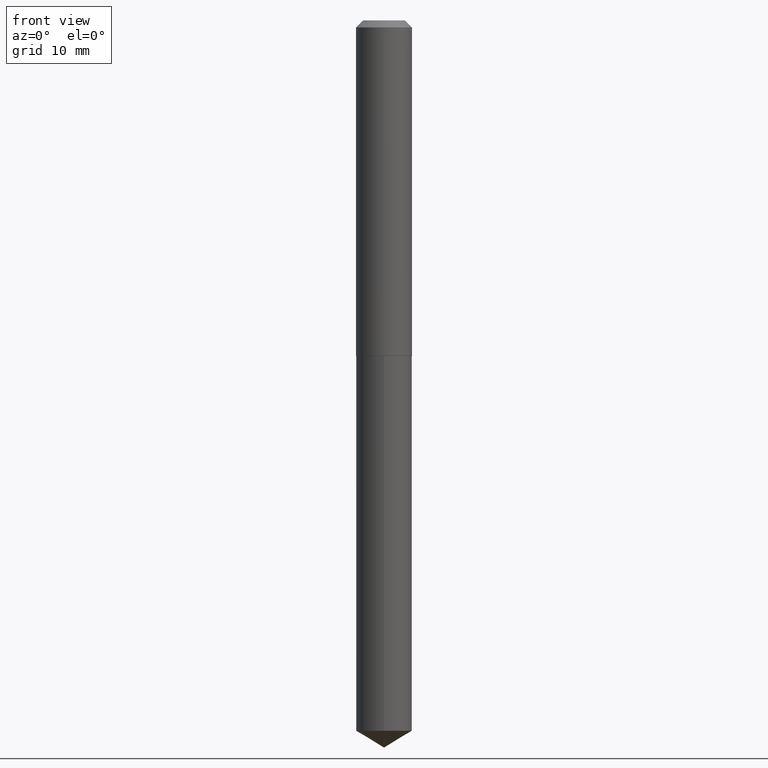
[diagram: clean part render]
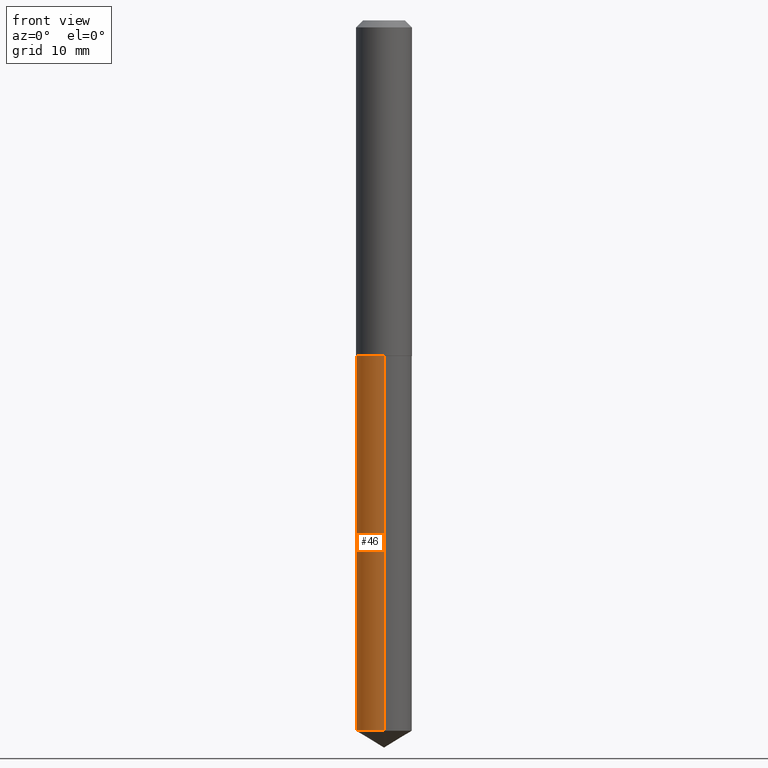
[diagram: same view with one face highlighted and labeled with its STEP entity id]
A machine part, front view. The second image highlights one B-rep face of the part: STEP entity #46.
In plain terms, the highlighted cylindrical surface (edge-blend (fillet) strip) has radius 3.175 mm, axis along (-0, 0, 1).
Its self-contained STEP definition (entity closure, byte-faithful):
#21 = CIRCLE ( 'NONE', #217, 0.1250000000000000000 ) ;
#32 = EDGE_CURVE ( 'NONE', #381, #43, #122, .T. ) ;
#33 = CARTESIAN_POINT ( 'NONE',  ( 3.668203209277704895E-29, -5.237222008264718177E-15, -1.500000000000000222 ) ) ;
#43 = VERTEX_POINT ( 'NONE', #60 ) ;
#46 = ADVANCED_FACE ( 'NONE', ( #183 ), #299, .T. ) ;
#51 = CARTESIAN_POINT ( 'NONE',  ( 8.881784197002027379E-16, 0.1249999999999889394, -3.174892422621556243 ) ) ;
#57 = AXIS2_PLACEMENT_3D ( 'NONE', #33, #223, #333 ) ;
#60 = CARTESIAN_POINT ( 'NONE',  ( 8.881784197002029351E-16, 0.1249999999999947542, -1.500000000000000666 ) ) ;
#72 = ORIENTED_EDGE ( 'NONE', *, *, #138, .T. ) ;
#108 = DIRECTION ( 'NONE',  ( -2.445363039001879850E-29, 3.491632803469463301E-15, 1.000000000000000000 ) ) ;
#121 = CARTESIAN_POINT ( 'NONE',  ( -8.728703347107465582E-16, -0.1250000000000052458, -1.499999999999999556 ) ) ;
#122 = LINE ( 'NONE', #251, #154 ) ;
#138 = EDGE_CURVE ( 'NONE', #282, #149, #354, .T. ) ;
#149 = VERTEX_POINT ( 'NONE', #121 ) ;
#154 = VECTOR ( 'NONE', #361, 39.37007874015748143 ) ;
#178 = CARTESIAN_POINT ( 'NONE',  ( -8.728703347107465582E-16, -0.1250000000000052458, -1.499999999999999556 ) ) ;
#183 = FACE_OUTER_BOUND ( 'NONE', #234, .T. ) ;
#190 = AXIS2_PLACEMENT_3D ( 'NONE', #343, #214, #311 ) ;
#191 = DIRECTION ( 'NONE',  ( -2.445363039001879850E-29, 3.491632803469463695E-15, 1.000000000000000000 ) ) ;
#200 = ORIENTED_EDGE ( 'NONE', *, *, #32, .F. ) ;
#214 = DIRECTION ( 'NONE',  ( -2.445363039001879850E-29, 3.491632803469463695E-15, 1.000000000000000000 ) ) ;
#216 = VECTOR ( 'NONE', #108, 39.37007874015748143 ) ;
#217 = AXIS2_PLACEMENT_3D ( 'NONE', #308, #191, #307 ) ;
#223 = DIRECTION ( 'NONE',  ( -2.445363039001879850E-29, 3.491632803469463695E-15, 1.000000000000000000 ) ) ;
#234 = EDGE_LOOP ( 'NONE', ( #200, #322, #72, #267 ) ) ;
#247 = EDGE_CURVE ( 'NONE', #43, #149, #341, .T. ) ;
#251 = CARTESIAN_POINT ( 'NONE',  ( 8.881784197001617172E-16, 0.1249999999999947542, -1.500000000000000666 ) ) ;
#267 = ORIENTED_EDGE ( 'NONE', *, *, #247, .F. ) ;
#282 = VERTEX_POINT ( 'NONE', #324 ) ;
#299 = CYLINDRICAL_SURFACE ( 'NONE', #57, 0.1250000000000000000 ) ;
#307 = DIRECTION ( 'NONE',  ( -6.982962677686265922E-15, -1.000000000000000000, 4.370956789862821150E-15 ) ) ;
#308 = CARTESIAN_POINT ( 'NONE',  ( 7.763923233860773815E-29, -1.108533133337258347E-14, -3.174892422621555799 ) ) ;
#311 = DIRECTION ( 'NONE',  ( -6.982962677686265922E-15, -1.000000000000000000, 4.370956789862821150E-15 ) ) ;
#322 = ORIENTED_EDGE ( 'NONE', *, *, #365, .T. ) ;
#324 = CARTESIAN_POINT ( 'NONE',  ( -8.728703347107057346E-16, -0.1250000000000110745, -3.174892422621555355 ) ) ;
#333 = DIRECTION ( 'NONE',  ( -6.982962677686265922E-15, -1.000000000000000000, 4.370956789862821150E-15 ) ) ;
#341 = CIRCLE ( 'NONE', #190, 0.1250000000000000000 ) ;
#343 = CARTESIAN_POINT ( 'NONE',  ( 3.668203209277704895E-29, -5.237222008264718177E-15, -1.500000000000000222 ) ) ;
#354 = LINE ( 'NONE', #178, #216 ) ;
#361 = DIRECTION ( 'NONE',  ( -2.445363039001879850E-29, 3.491632803469463301E-15, 1.000000000000000000 ) ) ;
#365 = EDGE_CURVE ( 'NONE', #381, #282, #21, .T. ) ;
#381 = VERTEX_POINT ( 'NONE', #51 ) ;